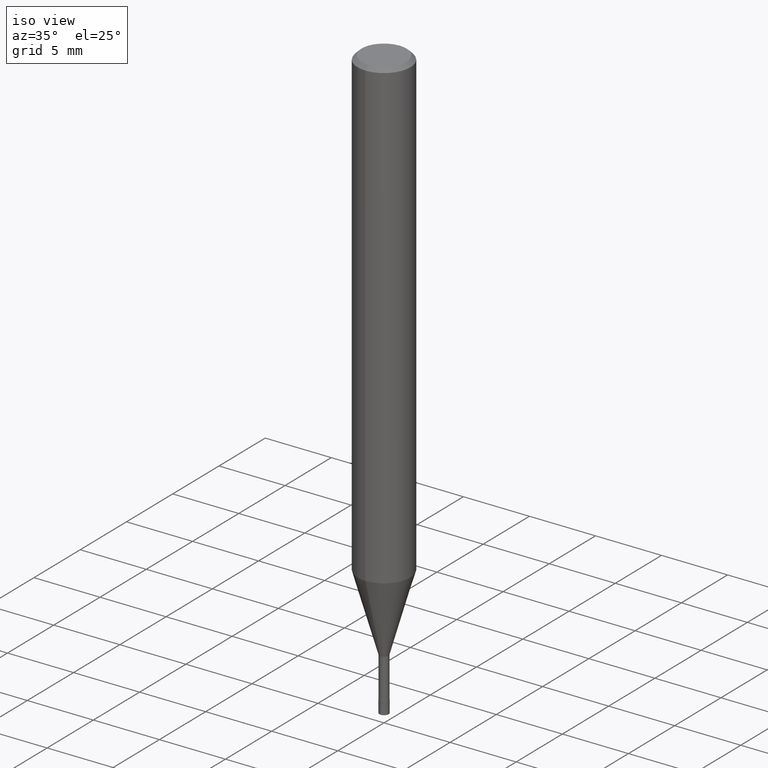
[diagram: clean part render]
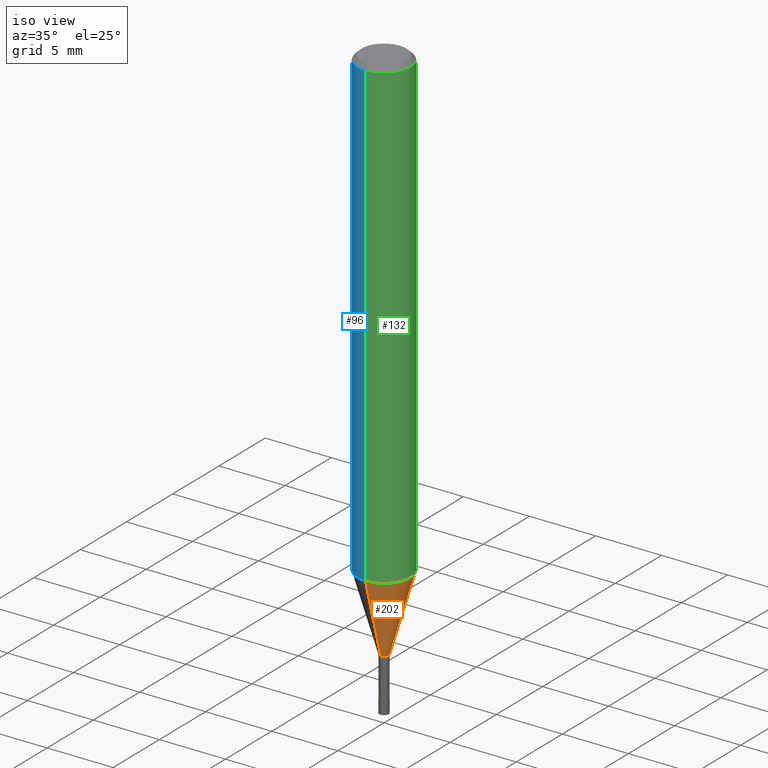
[diagram: same view with three faces highlighted in distinct colors, each labeled with its STEP entity id]
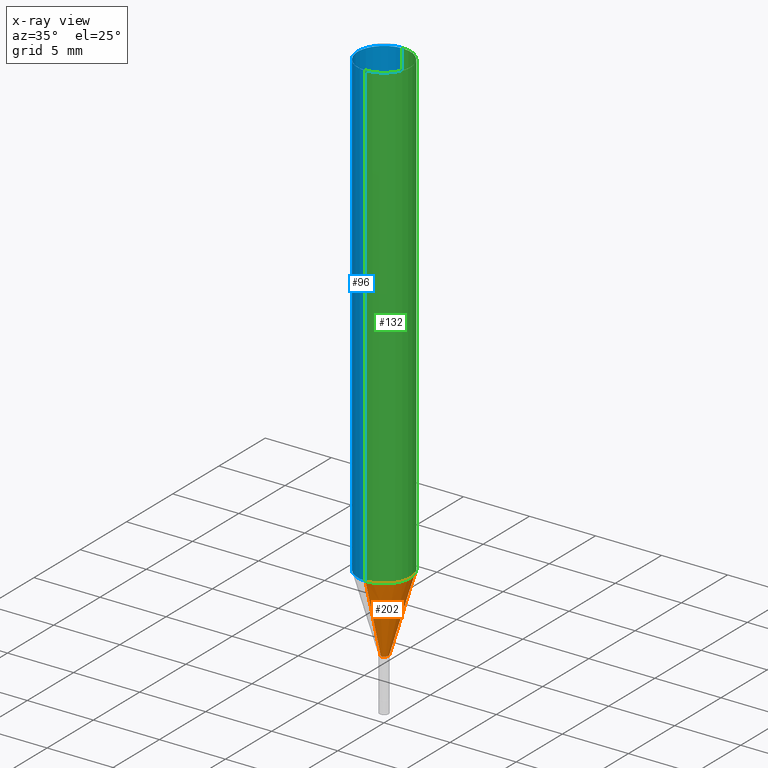
[diagram: x-ray of the same camera — body ghosted, the three highlighted faces saturated]
A machine part, iso view with three faces highlighted in distinct colors.
The next image is the same camera in x-ray (body ghosted, the three faces saturated) — at least one of them is partly hidden behind the body in this view.
Their STEP definitions:

[orange] entity #202 — the highlighted conical surface has half-angle 16 deg.
#112=VERTEX_POINT('',#252);
#126=EDGE_CURVE('',#112,#154,#267,.T.);
#130=VERTEX_POINT('',#272);
#148=EDGE_CURVE('',#130,#112,#292,.T.);
#154=VERTEX_POINT('',#298);
#162=EDGE_CURVE('',#154,#188,#310,.T.);
#174=EDGE_CURVE('',#130,#188,#325,.T.);
#188=VERTEX_POINT('',#339);
#202=ADVANCED_FACE('',(#353),#354,.T.);
#252=CARTESIAN_POINT('',(0.0,0.33995,-41.0));
#267=CIRCLE('',#420,0.33995);
#272=CARTESIAN_POINT('',(0.0,1.99995,-35.211));
#292=LINE('',#452,#453);
#298=CARTESIAN_POINT('',(4.16304929981917E-017,-0.33995,-41.0));
#310=LINE('',#474,#475);
#325=CIRCLE('',#494,1.99995);
#339=CARTESIAN_POINT('',(2.44915147732706E-016,-1.99995,-35.211));
#353=FACE_OUTER_BOUND('',#530,.T.);
#354=CONICAL_SURFACE('',#531,1.16995,0.279257622355071);
#420=AXIS2_PLACEMENT_3D('',#590,#591,#592);
#452=CARTESIAN_POINT('',(-1.43272820365449E-016,1.16995,-38.1055));
#453=VECTOR('',#623,1.0);
#474=CARTESIAN_POINT('',(1.43272820365449E-016,-1.16995,-38.1055));
#475=VECTOR('',#652,1.0);
#494=AXIS2_PLACEMENT_3D('',#681,#682,#683);
#530=EDGE_LOOP('',(#698,#699,#700,#701));
#531=AXIS2_PLACEMENT_3D('',#702,#703,#704);
#590=CARTESIAN_POINT('',(0.0,0.0,-41.0));
#591=DIRECTION('',(0.0,0.0,-1.0));
#592=DIRECTION('',(0.0,1.0,0.0));
#623=DIRECTION('',(3.37553074882733E-017,-0.275642106403519,-0.961260333716851));
#652=DIRECTION('',(3.37553074882733E-017,-0.275642106403519,0.961260333716851));
#681=CARTESIAN_POINT('',(0.0,0.0,-35.211));
#682=DIRECTION('',(0.0,0.0,-1.0));
#683=DIRECTION('',(0.0,1.0,0.0));
#698=ORIENTED_EDGE('',*,*,#148,.F.);
#699=ORIENTED_EDGE('',*,*,#174,.T.);
#700=ORIENTED_EDGE('',*,*,#162,.F.);
#701=ORIENTED_EDGE('',*,*,#126,.F.);
#702=CARTESIAN_POINT('',(0.0,0.0,-38.1055));
#703=DIRECTION('',(-0.0,-0.0,1.0));
#704=DIRECTION('',(0.0,1.0,0.0));

[blue] entity #96 — the highlighted cylindrical surface (edge-blend (fillet) strip) has radius 2 mm, axis along (-0, -0, 1).
#96=ADVANCED_FACE('',(#235),#236,.T.);
#102=VERTEX_POINT('',#242);
#104=VERTEX_POINT('',#244);
#106=EDGE_CURVE('',#104,#184,#246,.T.);
#176=EDGE_CURVE('',#204,#104,#327,.T.);
#180=EDGE_CURVE('',#204,#102,#331,.T.);
#184=VERTEX_POINT('',#335);
#204=VERTEX_POINT('',#356);
#208=EDGE_CURVE('',#184,#102,#361,.T.);
#235=FACE_OUTER_BOUND('',#380,.T.);
#236=CYLINDRICAL_SURFACE('',#381,2.0);
#242=CARTESIAN_POINT('',(0.0,2.0,-35.211));
#244=CARTESIAN_POINT('',(2.44921270764475E-016,-2.0,-0.299999999999997));
#246=CIRCLE('',#395,2.0);
#327=LINE('',#497,#498);
#331=CIRCLE('',#505,2.0);
#335=CARTESIAN_POINT('',(0.0,2.0,-0.299999999999997));
#356=CARTESIAN_POINT('',(2.44921270764475E-016,-2.0,-35.211));
#361=LINE('',#539,#540);
#380=EDGE_LOOP('',(#555,#556,#557,#558));
#381=AXIS2_PLACEMENT_3D('',#559,#560,#561);
#395=AXIS2_PLACEMENT_3D('',#566,#567,#568);
#497=CARTESIAN_POINT('',(2.44921270764475E-016,-2.0,-17.7555));
#498=VECTOR('',#684,1.0);
#505=AXIS2_PLACEMENT_3D('',#686,#687,#688);
#539=CARTESIAN_POINT('',(-2.44921270764475E-016,2.0,-17.7555));
#540=VECTOR('',#713,1.0);
#555=ORIENTED_EDGE('',*,*,#208,.T.);
#556=ORIENTED_EDGE('',*,*,#180,.F.);
#557=ORIENTED_EDGE('',*,*,#176,.T.);
#558=ORIENTED_EDGE('',*,*,#106,.T.);
#559=CARTESIAN_POINT('',(0.0,0.0,-17.7555));
#560=DIRECTION('',(-0.0,-0.0,1.0));
#561=DIRECTION('',(0.0,1.0,0.0));
#566=CARTESIAN_POINT('',(0.0,0.0,-0.299999999999997));
#567=DIRECTION('',(0.0,0.0,-1.0));
#568=DIRECTION('',(0.0,1.0,0.0));
#684=DIRECTION('',(-0.0,-0.0,1.0));
#686=CARTESIAN_POINT('',(0.0,0.0,-35.211));
#687=DIRECTION('',(0.0,0.0,-1.0));
#688=DIRECTION('',(0.0,1.0,0.0));
#713=DIRECTION('',(0.0,0.0,-1.0));

[green] entity #132 — the highlighted cylindrical surface (edge-blend (fillet) strip) has radius 2 mm, axis along (-0, -0, 1).
#102=VERTEX_POINT('',#242);
#104=VERTEX_POINT('',#244);
#122=EDGE_CURVE('',#184,#104,#263,.T.);
#132=ADVANCED_FACE('',(#274),#275,.T.);
#176=EDGE_CURVE('',#204,#104,#327,.T.);
#184=VERTEX_POINT('',#335);
#198=EDGE_CURVE('',#102,#204,#349,.T.);
#204=VERTEX_POINT('',#356);
#208=EDGE_CURVE('',#184,#102,#361,.T.);
#242=CARTESIAN_POINT('',(0.0,2.0,-35.211));
#244=CARTESIAN_POINT('',(2.44921270764475E-016,-2.0,-0.299999999999997));
#263=CIRCLE('',#414,2.0);
#274=FACE_OUTER_BOUND('',#427,.T.);
#275=CYLINDRICAL_SURFACE('',#428,2.0);
#327=LINE('',#497,#498);
#335=CARTESIAN_POINT('',(0.0,2.0,-0.299999999999997));
#349=CIRCLE('',#526,2.0);
#356=CARTESIAN_POINT('',(2.44921270764475E-016,-2.0,-35.211));
#361=LINE('',#539,#540);
#414=AXIS2_PLACEMENT_3D('',#584,#585,#586);
#427=EDGE_LOOP('',(#600,#601,#602,#603));
#428=AXIS2_PLACEMENT_3D('',#604,#605,#606);
#497=CARTESIAN_POINT('',(2.44921270764475E-016,-2.0,-17.7555));
#498=VECTOR('',#684,1.0);
#526=AXIS2_PLACEMENT_3D('',#694,#695,#696);
#539=CARTESIAN_POINT('',(-2.44921270764475E-016,2.0,-17.7555));
#540=VECTOR('',#713,1.0);
#584=CARTESIAN_POINT('',(0.0,0.0,-0.299999999999997));
#585=DIRECTION('',(0.0,0.0,-1.0));
#586=DIRECTION('',(0.0,1.0,0.0));
#600=ORIENTED_EDGE('',*,*,#208,.F.);
#601=ORIENTED_EDGE('',*,*,#122,.T.);
#602=ORIENTED_EDGE('',*,*,#176,.F.);
#603=ORIENTED_EDGE('',*,*,#198,.F.);
#604=CARTESIAN_POINT('',(0.0,0.0,-17.7555));
#605=DIRECTION('',(-0.0,-0.0,1.0));
#606=DIRECTION('',(0.0,1.0,0.0));
#684=DIRECTION('',(-0.0,-0.0,1.0));
#694=CARTESIAN_POINT('',(0.0,0.0,-35.211));
#695=DIRECTION('',(0.0,0.0,-1.0));
#696=DIRECTION('',(0.0,1.0,0.0));
#713=DIRECTION('',(0.0,0.0,-1.0));